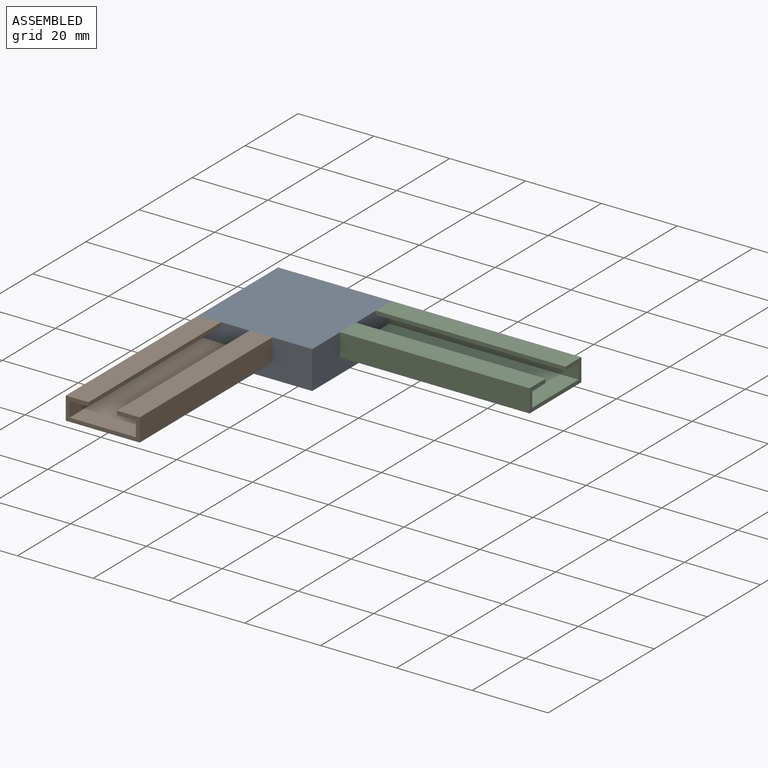
[diagram: assembled view]
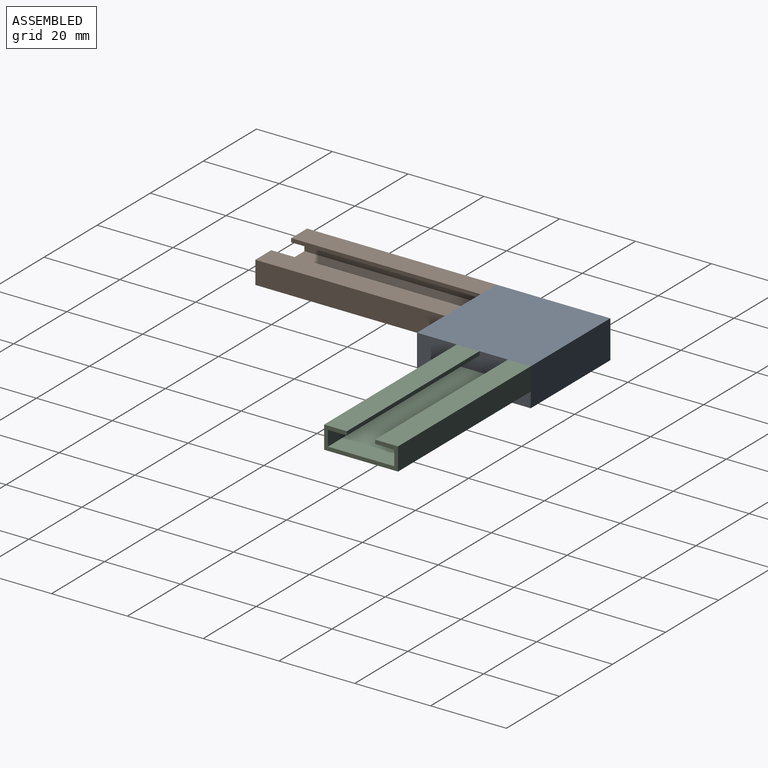
[diagram: assembled view, second angle]
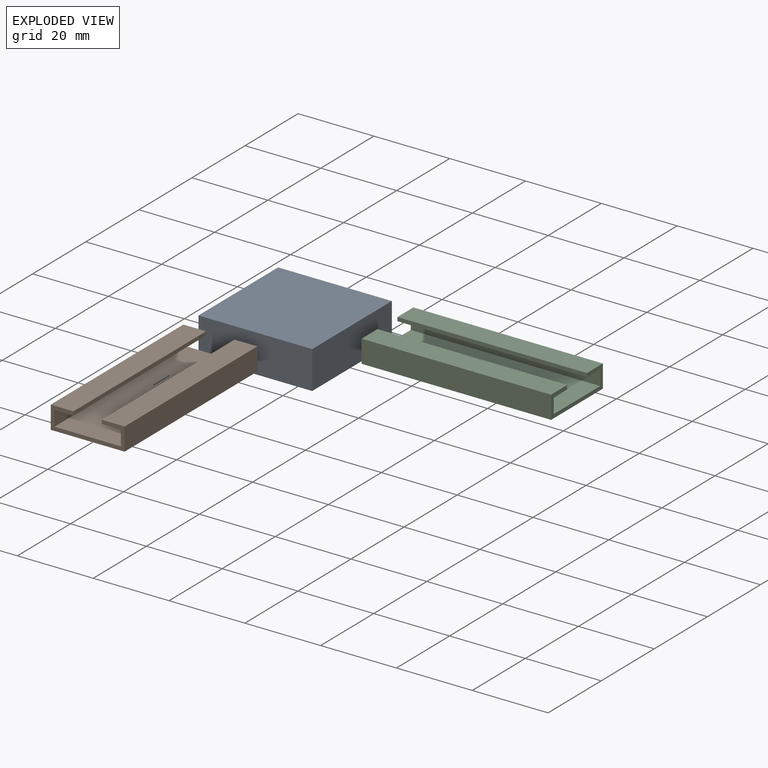
[diagram: exploded view]
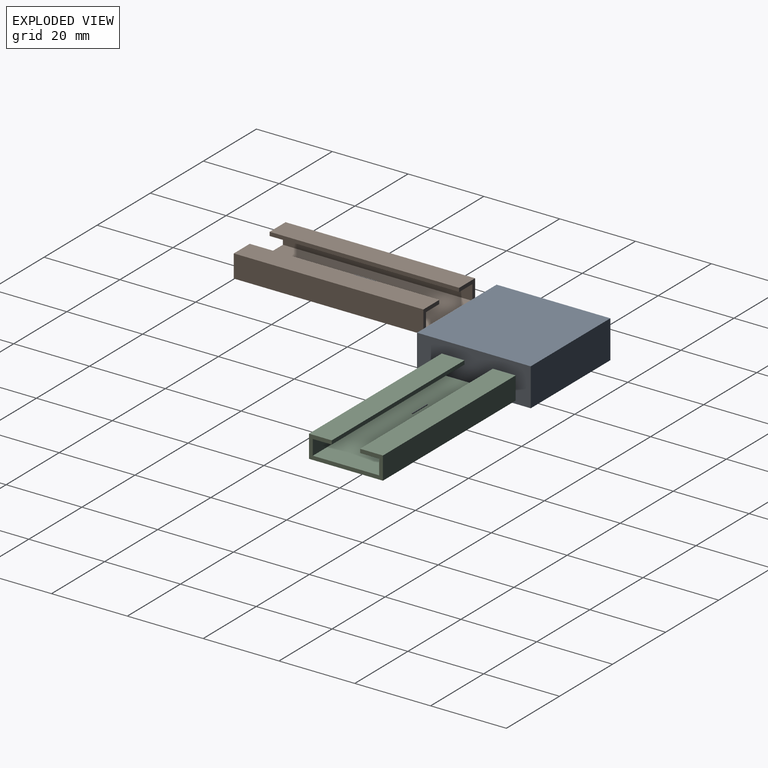
[diagram: exploded view, second angle]
ASSEMBLY  parts=3 mates=6
PART A: 6 faces, bbox 30x10x30 mm
  f0: plane 30x10mm, normal (-1,0,0), area 300mm2, adj f1,f3,f4,f5
  f1: plane 30x30mm, normal (0,-1,0), area 900mm2, adj f0,f2,f4,f5
  f2: plane 30x10mm, normal (1,0,0), area 300mm2, adj f1,f3,f4,f5
  f3: plane 30x30mm, normal (0,1,0), area 900mm2, adj f0,f2,f4,f5
  f4: plane 30x10mm, normal (0,0,1), area 300mm2, adj f0,f1,f2,f3
  f5: plane 30x10mm, normal (0,0,-1), area 300mm2, adj f0,f1,f2,f3
PART B: 14 faces, bbox 19.5x50x6 mm
  f0: plane 50x6mm, normal (-1,0,0), area 300mm2, adj f1,f11,f12,f13
  f1: plane 50x19.5mm, normal (0,0,-1), area 975mm2, adj f0,f2,f12,f13
  f2: plane 50x6mm, normal (1,0,0), area 300mm2, adj f1,f3,f12,f13
  f3: plane 50x6mm, normal (0,0,1), area 300mm2, adj f2,f4,f12,f13
  f4: plane 50x1mm, normal (-1,0,0), area 50mm2, adj f3,f5,f12,f13
  f5: plane 50x5mm, normal (0,0,-1), area 250mm2, adj f4,f6,f12,f13
  f6: plane 50x4mm, normal (-1,0,0), area 200mm2, adj f5,f7,f12,f13
  f7: plane 50x17.5mm, normal (0,0,1), area 875mm2, adj f6,f8,f12,f13
  f8: plane 50x4mm, normal (1,0,0), area 200mm2, adj f7,f9,f12,f13
  f9: plane 50x5mm, normal (0,0,-1), area 250mm2, adj f8,f10,f12,f13
  f10: plane 50x1mm, normal (1,0,0), area 50mm2, adj f9,f11,f12,f13
  f11: plane 50x6mm, normal (0,0,1), area 300mm2, adj f0,f10,f12,f13
  f12: plane 19.5x6mm, normal (0,-1,0), area 39.5mm2, adj f0,f1,f2,f3,f4,f5,f6,f7
  f13: plane 19.5x6mm, normal (0,1,0), area 39.5mm2, adj f0,f1,f2,f3,f4,f5,f6,f7
PART C: same geometry as B
PLACE A rot(axis=(-1,0,0),90deg) t=(110.96,-2.44,-5)mm
PLACE B rot(axis=(0,0,-1),0deg) t=(105.71,-42.44,-5)mm
PLACE C rot(axis=(0,0,-1),90deg) t=(150.96,2.81,-5)mm
MATE planar A.f5 <-> B.f13  axis (0,-1,0) through (110.96,-17.44,-5)mm
MATE planar A.f2 <-> C.f12  axis (1,0,0) through (125.96,-2.44,-5)mm
MATE planar A.f4 <-> C.f0  axis (0,1,0) through (110.96,12.56,-5)mm
MATE planar A.f0 <-> B.f0  axis (-1,0,0) through (95.96,-2.44,-5)mm
MATE planar A.f1 <-> C.f3  axis (0,0,1) through (110.96,-2.44,0)mm
MATE planar B.f11 <-> A.f1  axis (0,0,1) through (101.96,-17.44,0)mm
